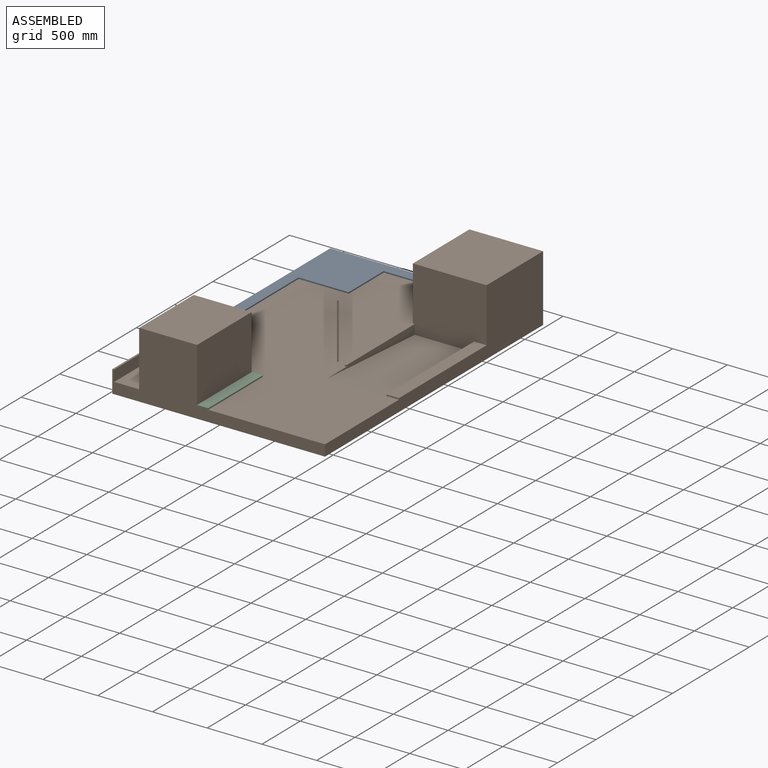
[diagram: assembled view]
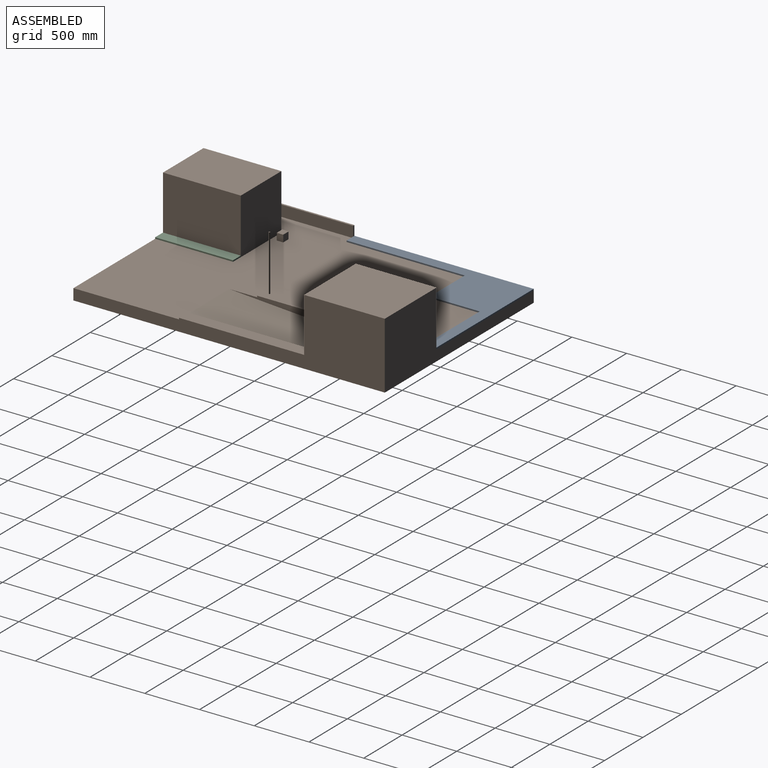
[diagram: assembled view, second angle]
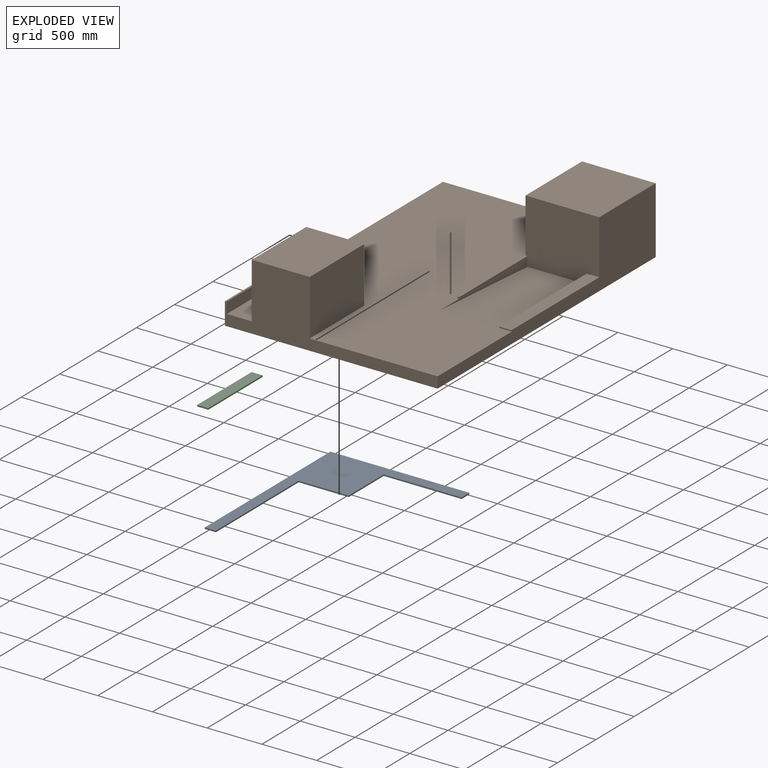
[diagram: exploded view]
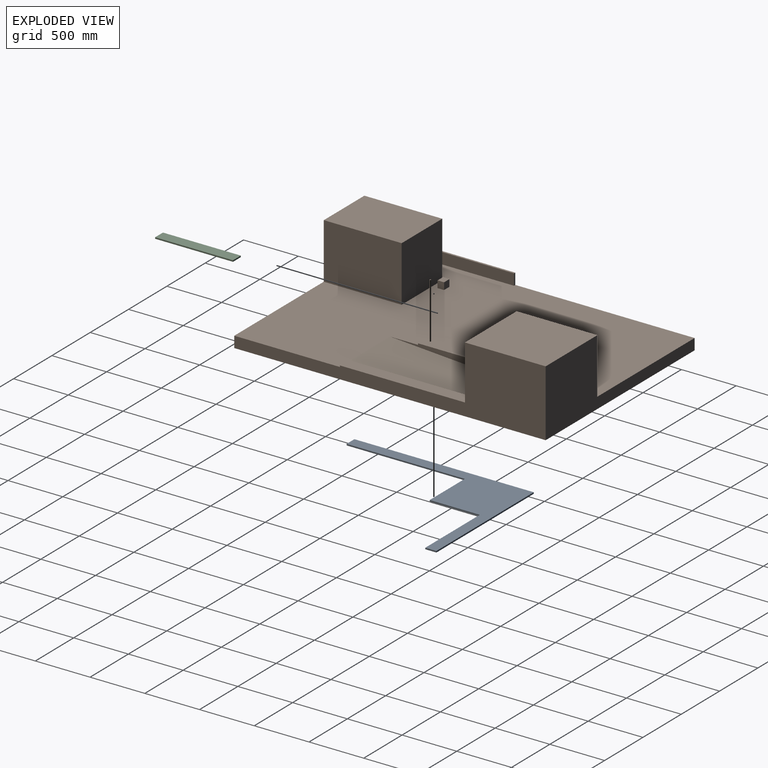
[diagram: exploded view, second angle]
ASSEMBLY  parts=3 mates=2
PART A: 10 faces, bbox 1270x1638.3x12.7 mm
  f0: plane 457.2x12.7mm, normal (1,0,0), area 5806.4mm2, adj f1,f7,f8,f9
  f1: plane 711.2x12.7mm, normal (0,-1,0), area 9032.2mm2, adj f0,f2,f8,f9
  f2: plane 101.6x12.7mm, normal (1,0,0), area 1290.3mm2, adj f1,f3,f8,f9
  f3: plane 1270x12.7mm, normal (0,1,0), area 16129mm2, adj f2,f4,f8,f9
  f4: plane 1638.3x12.7mm, normal (-1,0,0), area 20806.4mm2, adj f3,f5,f8,f9
  f5: plane 101.6x12.7mm, normal (0,-1,0), area 1290.3mm2, adj f4,f6,f8,f9
  f6: plane 1079.5x12.7mm, normal (1,0,0), area 13709.6mm2, adj f5,f7,f8,f9
  f7: plane 457.2x12.7mm, normal (0,-1,0), area 5806.4mm2, adj f0,f6,f8,f9
  f8: plane 1638.3x1270mm, normal (0,0,1), area 494192.6mm2, adj f0,f1,f2,f3,f4,f5,f6,f7
  f9: plane 1638.3x1270mm, normal (0,0,-1), area 494192.6mm2, adj f0,f1,f2,f3,f4,f5,f6,f7
PART B: 30 faces, bbox 1943.1x2844.8x609.6 mm
  f0: plane 2844.8x1943.1mm, normal (0,0,1), area 3865871.5mm2, adj f2,f3,f4,f5,f7,f9,f10,f11
  f1: plane 673.1x584.2mm, normal (0,-1,0), area 381573.4mm2, adj f2,f7,f8,f15,f17,f19,f20,f26
  f2: plane 2844.8x609.6mm, normal (1,0,0), area 677740.6mm2, adj f0,f1,f3,f5,f6,f8,f16,f17
  f3: plane 1943.1x609.6mm, normal (0,1,0), area 539353.8mm2, adj f0,f2,f4,f6,f7,f8
  f4: plane 2844.8x203.2mm, normal (-1,0,0), area 411612.1mm2, adj f0,f3,f5,f6,f28,f29
  f5: plane 1943.1x609.6mm, normal (0,-1,0), area 468024.9mm2, adj f0,f2,f4,f6,f9,f10,f12,f27
  f6: plane 2844.8x1943.1mm, normal (0,0,-1), area 5527730.9mm2, adj f2,f3,f4,f5
  f7: plane 1625.6x508mm, normal (-1,0,0), area 385483.1mm2, adj f0,f1,f3,f8,f18,f20
  f8: plane 736.6x673.1mm, normal (0,0,1), area 495805.5mm2, adj f1,f2,f3,f7
  f9: plane 711.2x508mm, normal (-1,0,0), area 361289.6mm2, adj f0,f5,f11,f12
  f10: plane 711.2x508mm, normal (1,0,0), area 361289.6mm2, adj f0,f5,f11,f12
  f11: plane 529.34x508mm, normal (0,1,0), area 268902.7mm2, adj f0,f9,f10,f12
  f12: plane 711.2x529.34mm, normal (0,0,1), area 376463.8mm2, adj f5,f9,f10,f11
  f13: cylinder r=6.35mm len=508mm, axis (0,0,-1), area 20268.3mm2, adj f0,f14
  f14: plane 12.7x12.7mm, normal (0,0,1), area 126.7mm2, adj f13
  f15: plane 1143x88.9mm, normal (-1,0,0), area 58064.4mm2, adj f1,f16,f17,f26
  f16: plane 114.3x12.7mm, normal (0,-1,0), area 1451.6mm2, adj f0,f2,f15,f17
  f17: plane 1143x114.3mm, normal (0,0,1), area 130644.9mm2, adj f1,f2,f15,f16
  f18: plane 16.76x12.7mm, normal (0,-1,0), area 212.9mm2, adj f0,f7,f19,f20
  f19: plane 1143x88.9mm, normal (1,0,0), area 54838.6mm2, adj f0,f1,f18,f20,f26
  f20: plane 889x16.76mm, normal (0,0,1), area 14903.2mm2, adj f1,f7,f18,f19
  f21: plane 63.5x59.61mm, normal (-1,0,0), area 3785.2mm2, adj f0,f22,f24,f25
  f22: plane 69.49x63.5mm, normal (0,-1,0), area 4412.8mm2, adj f0,f21,f23,f25
  f23: plane 63.5x59.61mm, normal (1,0,0), area 3785.2mm2, adj f0,f22,f24,f25
  f24: plane 69.49x63.5mm, normal (0,1,0), area 4412.8mm2, adj f0,f21,f23,f25
  f25: plane 69.49x59.61mm, normal (0,0,1), area 4142.4mm2, adj f21,f22,f23,f24
  f26: plane 1143x542.04mm, normal (0,0.07,1), area 620922.4mm2, adj f0,f1,f15,f19
  f27: plane 1206.5x101.6mm, normal (1,0,0), area 122580.4mm2, adj f0,f5,f28,f29
  f28: plane 101.6x16.76mm, normal (0,1,0), area 1703.2mm2, adj f0,f4,f27,f29
  f29: plane 1206.5x16.76mm, normal (0,0,1), area 20225.8mm2, adj f4,f5,f27,f28
PART C: 6 faces, bbox 101.6x711.2x12.7 mm
  f0: plane 101.6x12.7mm, normal (0,-1,0), area 1290.3mm2, adj f1,f3,f4,f5
  f1: plane 711.2x12.7mm, normal (1,0,0), area 9032.2mm2, adj f0,f2,f4,f5
  f2: plane 101.6x12.7mm, normal (0,1,0), area 1290.3mm2, adj f1,f3,f4,f5
  f3: plane 711.2x12.7mm, normal (-1,0,0), area 9032.2mm2, adj f0,f2,f4,f5
  f4: plane 711.2x101.6mm, normal (0,0,1), area 72257.9mm2, adj f0,f1,f2,f3
  f5: plane 711.2x101.6mm, normal (0,0,-1), area 72257.9mm2, adj f0,f1,f2,f3
PLACE A t=(298.45,685.8,101.6)mm
PLACE B t=(298.45,685.8,101.6)mm
PLACE C t=(298.45,685.8,101.6)mm
MATE fastened A.f9 <-> B.f0  axis (0,0,-1) through (-971.55,1422.4,101.6)mm
MATE fastened B.f0 <-> C.f5  axis (0,0,1) through (-196.85,-711.2,101.6)mm
